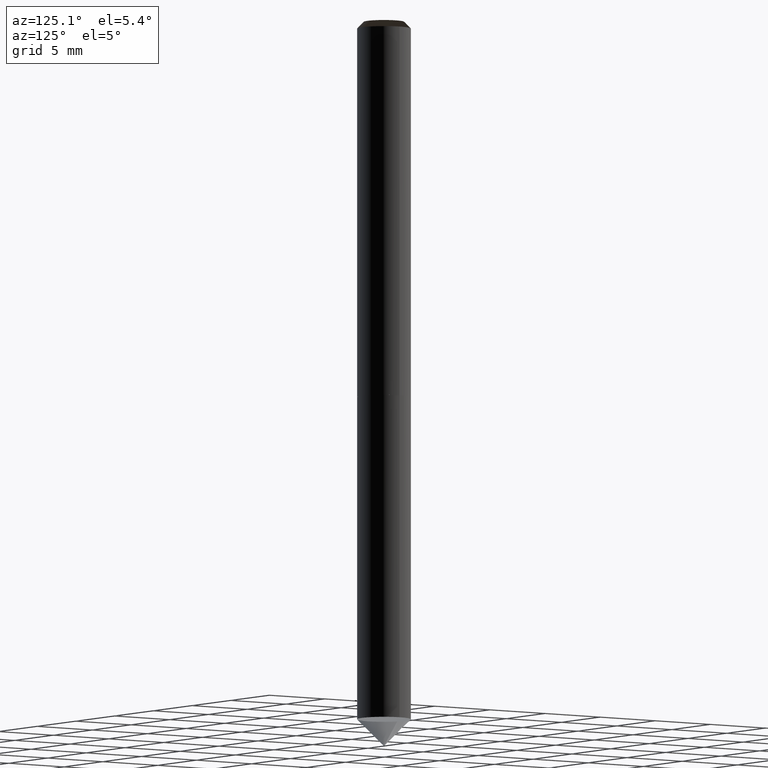
[diagram: clean part render]
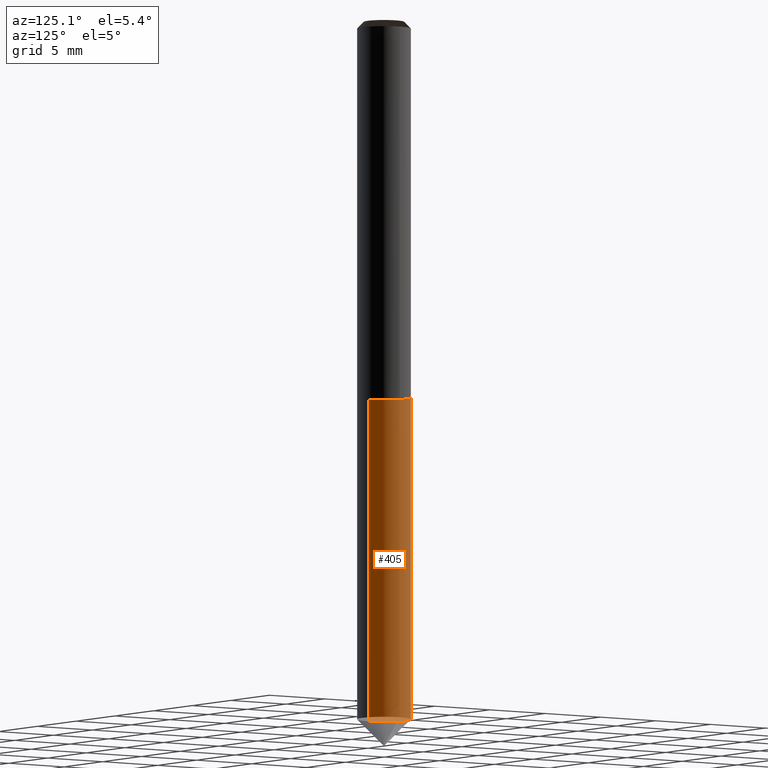
[diagram: same view with one face highlighted and labeled with its STEP entity id]
A machine part, auxiliary view. The second image highlights one B-rep face of the part: STEP entity #405.
In plain terms, the highlighted face is a freeform B-spline surface patch.
Its self-contained STEP definition (entity closure, byte-faithful):
#261=CARTESIAN_POINT('',(2.0,0.0,-24.0));
#262=CARTESIAN_POINT('',(2.0,2.0,-24.0));
#263=CARTESIAN_POINT('',(0.0,2.0,-24.0));
#264=CARTESIAN_POINT('',(-2.0,2.0,-24.0));
#265=CARTESIAN_POINT('',(-2.0,0.0,-24.0));
#270=CARTESIAN_POINT('',(2.0,0.0,0.0));
#271=CARTESIAN_POINT('',(2.0,2.0,0.0));
#272=CARTESIAN_POINT('',(0.0,2.0,0.0));
#273=CARTESIAN_POINT('',(-2.0,2.0,0.0));
#274=CARTESIAN_POINT('',(-2.0,0.0,0.0));
#386=(
BOUNDED_SURFACE()
B_SPLINE_SURFACE(1,2,(
(#261,#262,#263,#264,#265),
(#270,#271,#272,#273,#274)
), .UNSPECIFIED.,.F.,.F.,.F.)
B_SPLINE_SURFACE_WITH_KNOTS((2,2),(3,2,3),(
0.0,1.0),(
0.0,0.5,1.0), .UNSPECIFIED.)
GEOMETRIC_REPRESENTATION_ITEM()
RATIONAL_B_SPLINE_SURFACE(((1.0,0.707106781187,1.0,0.707106781187,1.0),
(1.0,0.707106781187,1.0,0.707106781187,1.0)
))
REPRESENTATION_ITEM('')
SURFACE()
);
#387=(
BOUNDED_CURVE()
B_SPLINE_CURVE(2,(#270,#271,#272,#273,#274),.UNSPECIFIED.,.F.,.F.)
B_SPLINE_CURVE_WITH_KNOTS((3,2,3),
(0.0,0.5,1.0),.UNSPECIFIED.)
CURVE()
GEOMETRIC_REPRESENTATION_ITEM()
RATIONAL_B_SPLINE_CURVE((1.0,0.707106781187,1.0,0.707106781187,1.0))
REPRESENTATION_ITEM('')
);
#388=(
BOUNDED_CURVE()
B_SPLINE_CURVE(1,(#274,#265),.UNSPECIFIED.,.F.,.F.)
B_SPLINE_CURVE_WITH_KNOTS((2,2),
(0.0,1.0),.UNSPECIFIED.)
CURVE()
GEOMETRIC_REPRESENTATION_ITEM()
RATIONAL_B_SPLINE_CURVE((1.0,1.0))
REPRESENTATION_ITEM('')
);
#389=(
BOUNDED_CURVE()
B_SPLINE_CURVE(2,(#265,#264,#263,#262,#261),.UNSPECIFIED.,.F.,.F.)
B_SPLINE_CURVE_WITH_KNOTS((3,2,3),
(0.0,0.5,1.0),.UNSPECIFIED.)
CURVE()
GEOMETRIC_REPRESENTATION_ITEM()
RATIONAL_B_SPLINE_CURVE((1.0,0.707106781187,1.0,0.707106781187,1.0))
REPRESENTATION_ITEM('')
);
#390=(
BOUNDED_CURVE()
B_SPLINE_CURVE(1,(#261,#270),.UNSPECIFIED.,.F.,.F.)
B_SPLINE_CURVE_WITH_KNOTS((2,2),
(0.0,1.0),.UNSPECIFIED.)
CURVE()
GEOMETRIC_REPRESENTATION_ITEM()
RATIONAL_B_SPLINE_CURVE((1.0,1.0))
REPRESENTATION_ITEM('')
);
#391=VERTEX_POINT('',#261);
#392=VERTEX_POINT('',#265);
#393=VERTEX_POINT('',#270);
#394=VERTEX_POINT('',#274);
#395=EDGE_CURVE('',#393,#394,#387,.T.);
#396=EDGE_CURVE('',#394,#392,#388,.T.);
#397=EDGE_CURVE('',#392,#391,#389,.T.);
#398=EDGE_CURVE('',#391,#393,#390,.T.);
#399=ORIENTED_EDGE('',*,*,#395,.T.);
#400=ORIENTED_EDGE('',*,*,#396,.T.);
#401=ORIENTED_EDGE('',*,*,#397,.T.);
#402=ORIENTED_EDGE('',*,*,#398,.T.);
#403=EDGE_LOOP('',(#399,#400,#401,#402));
#404=FACE_OUTER_BOUND('',#403,.T.);
#405=ADVANCED_FACE('',(#404),#386,.T.);